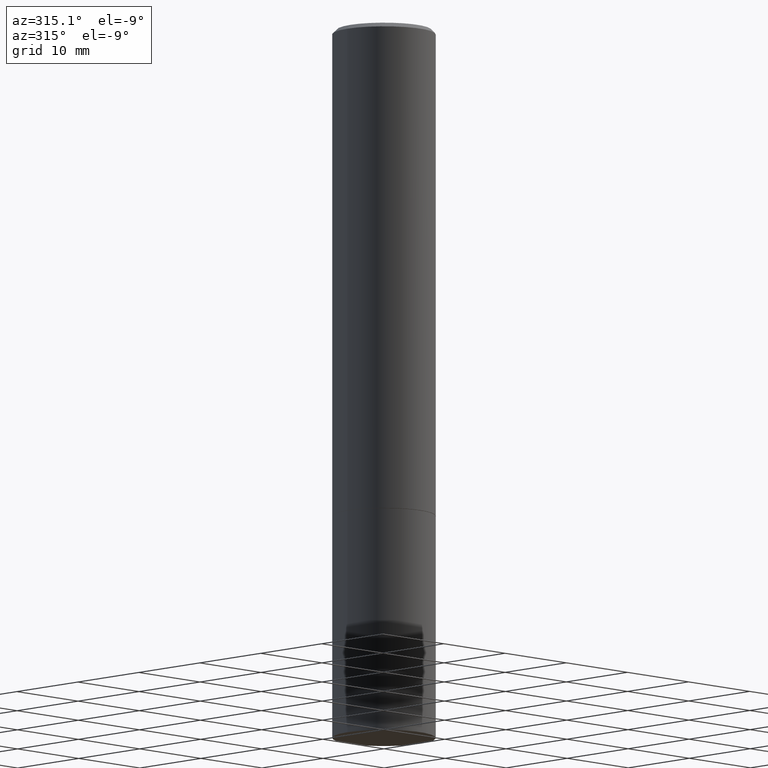
[diagram: clean part render]
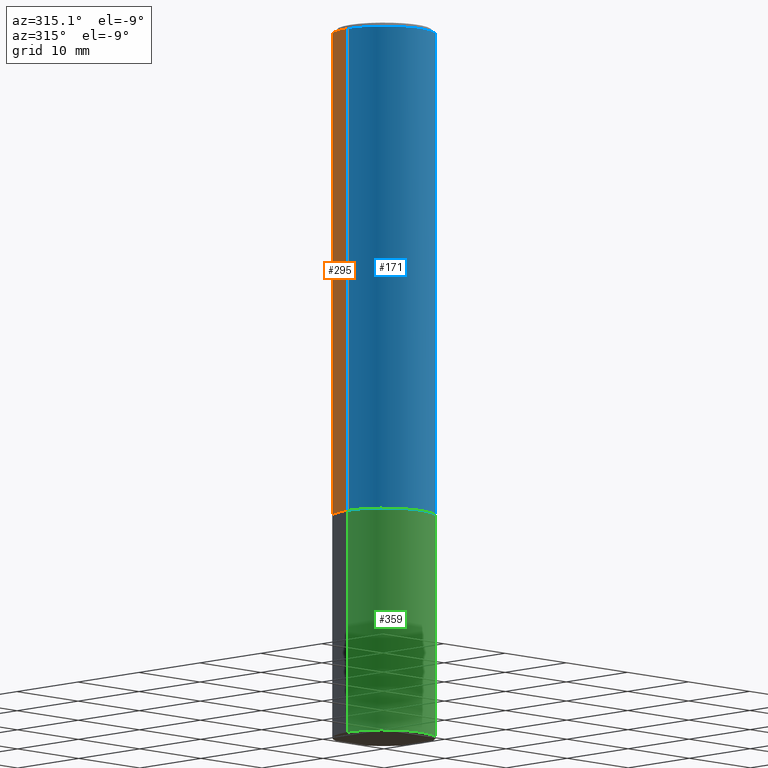
[diagram: same view with three faces highlighted in distinct colors, each labeled with its STEP entity id]
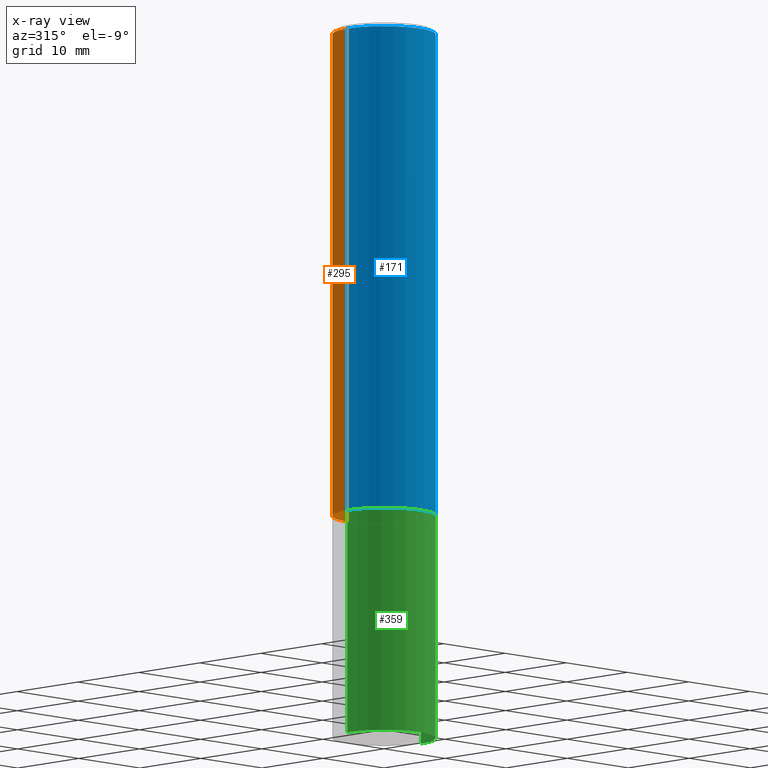
[diagram: x-ray of the same camera — body ghosted, the three highlighted faces saturated]
A machine part, auxiliary view with three faces highlighted in distinct colors.
The next image is the same camera in x-ray (body ghosted, the three faces saturated) — at least one of them is partly hidden behind the body in this view.
Their STEP definitions:

[orange] entity #295 — the highlighted cylindrical surface (partial cylindrical patch) has radius 5.9995 mm, axis along (-0, 0, 1).
#2 = AXIS2_PLACEMENT_3D ( 'NONE', #242, #264, #10 ) ;
#3 = DIRECTION ( 'NONE',  ( -2.445468806185136597E-29, 3.491481338843145583E-15, 1.000000000000000000 ) ) ;
#8 = DIRECTION ( 'NONE',  ( -2.445468806185136877E-29, 3.491481338843145188E-15, 1.000000000000000000 ) ) ;
#10 = DIRECTION ( 'NONE',  ( 1.000000000000000000, -6.982962677686266711E-15, 4.876176775795935793E-29 ) ) ;
#13 = VECTOR ( 'NONE', #252, 39.37007874015748143 ) ;
#31 = VECTOR ( 'NONE', #8, 39.37007874015748143 ) ;
#52 = ORIENTED_EDGE ( 'NONE', *, *, #261, .F. ) ;
#55 = DIRECTION ( 'NONE',  ( 1.000000000000000000, -6.982962677686269077E-15, 0.000000000000000000 ) ) ;
#62 = CARTESIAN_POINT ( 'NONE',  ( 4.890937612370284544E-31, -6.982962677686307633E-17, -0.02000000000000004552 ) ) ;
#63 = VERTEX_POINT ( 'NONE', #191 ) ;
#68 = DIRECTION ( 'NONE',  ( 1.000000000000000000, -6.982962677686266711E-15, 0.000000000000000000 ) ) ;
#80 = CIRCLE ( 'NONE', #168, 0.2361999999999999933 ) ;
#95 = EDGE_LOOP ( 'NONE', ( #269, #176, #52, #276 ) ) ;
#106 = LINE ( 'NONE', #336, #13 ) ;
#112 = CARTESIAN_POINT ( 'NONE',  ( 0.2361999999999997157, -1.690279253850496996E-15, -0.02000000000000004552 ) ) ;
#121 = CARTESIAN_POINT ( 'NONE',  ( -0.2361999999999998545, 1.678301941865355605E-15, -1.161852468318208056E-29 ) ) ;
#124 = VERTEX_POINT ( 'NONE', #112 ) ;
#130 = EDGE_CURVE ( 'NONE', #248, #196, #80, .T. ) ;
#151 = CYLINDRICAL_SURFACE ( 'NONE', #2, 0.2361999999999998545 ) ;
#168 = AXIS2_PLACEMENT_3D ( 'NONE', #233, #3, #55 ) ;
#176 = ORIENTED_EDGE ( 'NONE', *, *, #221, .T. ) ;
#181 = LINE ( 'NONE', #121, #31 ) ;
#183 = EDGE_CURVE ( 'NONE', #248, #124, #106, .T. ) ;
#184 = DIRECTION ( 'NONE',  ( -2.445468806185136597E-29, 3.491481338843145583E-15, 1.000000000000000000 ) ) ;
#191 = CARTESIAN_POINT ( 'NONE',  ( -0.2361999999999997157, 1.579546157692631255E-15, -0.02000000000000004552 ) ) ;
#196 = VERTEX_POINT ( 'NONE', #365 ) ;
#221 = EDGE_CURVE ( 'NONE', #196, #63, #181, .T. ) ;
#233 = CARTESIAN_POINT ( 'NONE',  ( 5.485431079153880270E-29, -7.831741791159060910E-15, -2.243100000000000094 ) ) ;
#242 = CARTESIAN_POINT ( 'NONE',  ( 0.000000000000000000, 0.000000000000000000, 0.000000000000000000 ) ) ;
#248 = VERTEX_POINT ( 'NONE', #296 ) ;
#252 = DIRECTION ( 'NONE',  ( -2.445468806185136877E-29, 3.491481338843145188E-15, 1.000000000000000000 ) ) ;
#261 = EDGE_CURVE ( 'NONE', #124, #63, #323, .T. ) ;
#264 = DIRECTION ( 'NONE',  ( -2.445468806185136597E-29, 3.491481338843145583E-15, 1.000000000000000000 ) ) ;
#269 = ORIENTED_EDGE ( 'NONE', *, *, #130, .T. ) ;
#276 = ORIENTED_EDGE ( 'NONE', *, *, #183, .F. ) ;
#286 = AXIS2_PLACEMENT_3D ( 'NONE', #62, #184, #68 ) ;
#295 = ADVANCED_FACE ( 'NONE', ( #298 ), #151, .T. ) ;
#296 = CARTESIAN_POINT ( 'NONE',  ( 0.2361999999999999933, -9.481117575628557435E-15, -2.243100000000000094 ) ) ;
#298 = FACE_OUTER_BOUND ( 'NONE', #95, .T. ) ;
#323 = CIRCLE ( 'NONE', #286, 0.2361999999999997157 ) ;
#336 = CARTESIAN_POINT ( 'NONE',  ( 0.2361999999999998545, -1.649375784469495145E-15, 1.151752954442999387E-29 ) ) ;
#365 = CARTESIAN_POINT ( 'NONE',  ( -0.2362000000000000210, -2.272483767102602555E-15, -2.243100000000000094 ) ) ;

[blue] entity #171 — the highlighted cylindrical surface (partial cylindrical patch) has radius 5.9995 mm, axis along (-0, 0, 1).
#8 = DIRECTION ( 'NONE',  ( -2.445468806185136877E-29, 3.491481338843145188E-15, 1.000000000000000000 ) ) ;
#13 = VECTOR ( 'NONE', #252, 39.37007874015748143 ) ;
#21 = CIRCLE ( 'NONE', #192, 0.2361999999999999933 ) ;
#22 = ORIENTED_EDGE ( 'NONE', *, *, #183, .T. ) ;
#28 = CARTESIAN_POINT ( 'NONE',  ( 0.000000000000000000, 0.000000000000000000, 0.000000000000000000 ) ) ;
#31 = VECTOR ( 'NONE', #8, 39.37007874015748143 ) ;
#56 = DIRECTION ( 'NONE',  ( 1.000000000000000000, -6.982962677686266711E-15, 0.000000000000000000 ) ) ;
#63 = VERTEX_POINT ( 'NONE', #191 ) ;
#91 = ORIENTED_EDGE ( 'NONE', *, *, #194, .T. ) ;
#98 = ORIENTED_EDGE ( 'NONE', *, *, #221, .F. ) ;
#106 = LINE ( 'NONE', #336, #13 ) ;
#112 = CARTESIAN_POINT ( 'NONE',  ( 0.2361999999999997157, -1.690279253850496996E-15, -0.02000000000000004552 ) ) ;
#121 = CARTESIAN_POINT ( 'NONE',  ( -0.2361999999999998545, 1.678301941865355605E-15, -1.161852468318208056E-29 ) ) ;
#124 = VERTEX_POINT ( 'NONE', #112 ) ;
#131 = EDGE_LOOP ( 'NONE', ( #98, #91, #22, #330 ) ) ;
#138 = FACE_OUTER_BOUND ( 'NONE', #131, .T. ) ;
#140 = DIRECTION ( 'NONE',  ( -2.445468806185136597E-29, 3.491481338843145583E-15, 1.000000000000000000 ) ) ;
#143 = DIRECTION ( 'NONE',  ( 1.000000000000000000, -6.982962677686266711E-15, 4.876176775795935793E-29 ) ) ;
#171 = ADVANCED_FACE ( 'NONE', ( #138 ), #197, .T. ) ;
#180 = AXIS2_PLACEMENT_3D ( 'NONE', #202, #314, #56 ) ;
#181 = LINE ( 'NONE', #121, #31 ) ;
#183 = EDGE_CURVE ( 'NONE', #248, #124, #106, .T. ) ;
#191 = CARTESIAN_POINT ( 'NONE',  ( -0.2361999999999997157, 1.579546157692631255E-15, -0.02000000000000004552 ) ) ;
#192 = AXIS2_PLACEMENT_3D ( 'NONE', #254, #140, #257 ) ;
#194 = EDGE_CURVE ( 'NONE', #196, #248, #21, .T. ) ;
#196 = VERTEX_POINT ( 'NONE', #365 ) ;
#197 = CYLINDRICAL_SURFACE ( 'NONE', #274, 0.2361999999999998545 ) ;
#202 = CARTESIAN_POINT ( 'NONE',  ( 4.890937612370284544E-31, -6.982962677686307633E-17, -0.02000000000000004552 ) ) ;
#204 = EDGE_CURVE ( 'NONE', #63, #124, #241, .T. ) ;
#205 = DIRECTION ( 'NONE',  ( -2.445468806185136597E-29, 3.491481338843145583E-15, 1.000000000000000000 ) ) ;
#221 = EDGE_CURVE ( 'NONE', #196, #63, #181, .T. ) ;
#241 = CIRCLE ( 'NONE', #180, 0.2361999999999997157 ) ;
#248 = VERTEX_POINT ( 'NONE', #296 ) ;
#252 = DIRECTION ( 'NONE',  ( -2.445468806185136877E-29, 3.491481338843145188E-15, 1.000000000000000000 ) ) ;
#254 = CARTESIAN_POINT ( 'NONE',  ( 5.485431079153880270E-29, -7.831741791159060910E-15, -2.243100000000000094 ) ) ;
#257 = DIRECTION ( 'NONE',  ( 1.000000000000000000, -6.982962677686269077E-15, 0.000000000000000000 ) ) ;
#274 = AXIS2_PLACEMENT_3D ( 'NONE', #28, #205, #143 ) ;
#296 = CARTESIAN_POINT ( 'NONE',  ( 0.2361999999999999933, -9.481117575628557435E-15, -2.243100000000000094 ) ) ;
#314 = DIRECTION ( 'NONE',  ( -2.445468806185136597E-29, 3.491481338843145583E-15, 1.000000000000000000 ) ) ;
#330 = ORIENTED_EDGE ( 'NONE', *, *, #204, .F. ) ;
#336 = CARTESIAN_POINT ( 'NONE',  ( 0.2361999999999998545, -1.649375784469495145E-15, 1.151752954442999387E-29 ) ) ;
#365 = CARTESIAN_POINT ( 'NONE',  ( -0.2362000000000000210, -2.272483767102602555E-15, -2.243100000000000094 ) ) ;

[green] entity #359 — the highlighted cylindrical surface (partial cylindrical patch) has radius 5.9995 mm, axis along (-0, 0, 1).
#29 = EDGE_CURVE ( 'NONE', #345, #65, #234, .T. ) ;
#30 = CARTESIAN_POINT ( 'NONE',  ( -0.2361999999999999933, -7.943871479852467996E-15, -2.244100000000000428 ) ) ;
#38 = ORIENTED_EDGE ( 'NONE', *, *, #303, .T. ) ;
#39 = DIRECTION ( 'NONE',  ( -2.445468806185136877E-29, 3.491481338843145188E-15, 1.000000000000000000 ) ) ;
#65 = VERTEX_POINT ( 'NONE', #304 ) ;
#67 = AXIS2_PLACEMENT_3D ( 'NONE', #301, #193, #308 ) ;
#69 = VECTOR ( 'NONE', #352, 39.37007874015748143 ) ;
#71 = LINE ( 'NONE', #236, #69 ) ;
#88 = EDGE_CURVE ( 'NONE', #220, #290, #273, .T. ) ;
#110 = DIRECTION ( 'NONE',  ( -2.445468806185136597E-29, 3.491481338843145583E-15, 1.000000000000000000 ) ) ;
#111 = AXIS2_PLACEMENT_3D ( 'NONE', #342, #110, #335 ) ;
#125 = FACE_OUTER_BOUND ( 'NONE', #237, .T. ) ;
#146 = DIRECTION ( 'NONE',  ( -2.445468806185136597E-29, 3.491481338843145583E-15, 1.000000000000000000 ) ) ;
#193 = DIRECTION ( 'NONE',  ( -2.445468806185136597E-29, 3.491481338843145583E-15, 1.000000000000000000 ) ) ;
#212 = CARTESIAN_POINT ( 'NONE',  ( 0.000000000000000000, 0.000000000000000000, 0.000000000000000000 ) ) ;
#220 = VERTEX_POINT ( 'NONE', #30 ) ;
#226 = VECTOR ( 'NONE', #39, 39.37007874015748143 ) ;
#234 = CIRCLE ( 'NONE', #67, 0.2361999999999999933 ) ;
#235 = CARTESIAN_POINT ( 'NONE',  ( 0.2361999999999999933, -1.649375784469496131E-15, 1.151752954443000088E-29 ) ) ;
#236 = CARTESIAN_POINT ( 'NONE',  ( -0.2361999999999999933, 1.678301941865356591E-15, -1.161852468318208757E-29 ) ) ;
#237 = EDGE_LOOP ( 'NONE', ( #333, #325, #38, #302 ) ) ;
#238 = CARTESIAN_POINT ( 'NONE',  ( -0.2361999999999999933, -7.943871479852467996E-15, -3.267700000000000049 ) ) ;
#244 = EDGE_CURVE ( 'NONE', #345, #220, #71, .T. ) ;
#262 = LINE ( 'NONE', #235, #226 ) ;
#273 = CIRCLE ( 'NONE', #111, 0.2361999999999999933 ) ;
#287 = AXIS2_PLACEMENT_3D ( 'NONE', #212, #146, #291 ) ;
#290 = VERTEX_POINT ( 'NONE', #347 ) ;
#291 = DIRECTION ( 'NONE',  ( 1.000000000000000000, -6.982962677686266711E-15, 4.876176775795936353E-29 ) ) ;
#301 = CARTESIAN_POINT ( 'NONE',  ( 7.991058417971171713E-29, -1.140911357093774644E-14, -3.267700000000000049 ) ) ;
#302 = ORIENTED_EDGE ( 'NONE', *, *, #88, .F. ) ;
#303 = EDGE_CURVE ( 'NONE', #65, #290, #262, .T. ) ;
#304 = CARTESIAN_POINT ( 'NONE',  ( 0.2361999999999999933, -1.305848935540724297E-14, -3.267700000000000049 ) ) ;
#308 = DIRECTION ( 'NONE',  ( 1.000000000000000000, -6.982962677686265133E-15, 0.000000000000000000 ) ) ;
#325 = ORIENTED_EDGE ( 'NONE', *, *, #29, .T. ) ;
#327 = CYLINDRICAL_SURFACE ( 'NONE', #287, 0.2361999999999999933 ) ;
#333 = ORIENTED_EDGE ( 'NONE', *, *, #244, .F. ) ;
#335 = DIRECTION ( 'NONE',  ( 1.000000000000000000, -6.982962677686269077E-15, 0.000000000000000000 ) ) ;
#342 = CARTESIAN_POINT ( 'NONE',  ( 5.487876547960065873E-29, -7.835233272497903917E-15, -2.244100000000000428 ) ) ;
#345 = VERTEX_POINT ( 'NONE', #238 ) ;
#347 = CARTESIAN_POINT ( 'NONE',  ( 0.2361999999999999933, -9.484609056967400443E-15, -2.244100000000000428 ) ) ;
#352 = DIRECTION ( 'NONE',  ( -2.445468806185136877E-29, 3.491481338843145188E-15, 1.000000000000000000 ) ) ;
#359 = ADVANCED_FACE ( 'NONE', ( #125 ), #327, .T. ) ;